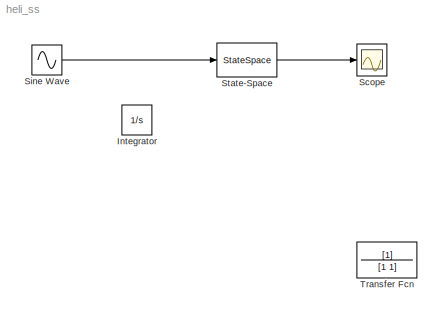
MODEL heli_ss
KIND model
BLOCK [Integrator] Integrator
  Ports = [1, 1]
  SID = 1
BLOCK [Scope] Scope
  Ports = [1]
  SID = 4
  ScopeSpecificationString = Simulink.scopes.TimeScopeBlockCfg('CurrentConfiguration', extmgr.ConfigurationSet(extmgr.Configuration('Core','General UI',true),extmgr.Configuration('Core','Source UI',true),extmgr.Configuration('Sources','WiredSimulink',true),extmgr.Configuration('Visuals','Time Domain',true,'SerializedDisplays',{struct('MinYLimReal','-116.43138','MaxYLimReal','250.61488','YLabelReal','','MinYLimMag',' 0.00000',...<+1422ch>
BLOCK [Sin] Sine Wave
  Amplitude = 0.1
  Frequency = 10
  Ports = [0, 1]
  SID = 5
  SampleTime = 0
BLOCK [StateSpace] State-Space
  A = [-0.4 0 -0.01; 1 0 0; -1.4 9.8 -0.02]
  B = [6.3; 0; 9.8]
  C = [0 0 1]
  D = 0
  Ports = [1, 1]
  SID = 3
  X0 = 0
BLOCK [TransferFcn] Transfer Fcn
  Denominator = [1 1]
  SID = 2
LINE Sine Wave:1 -> State-Space:1
LINE State-Space:1 -> Scope:1
